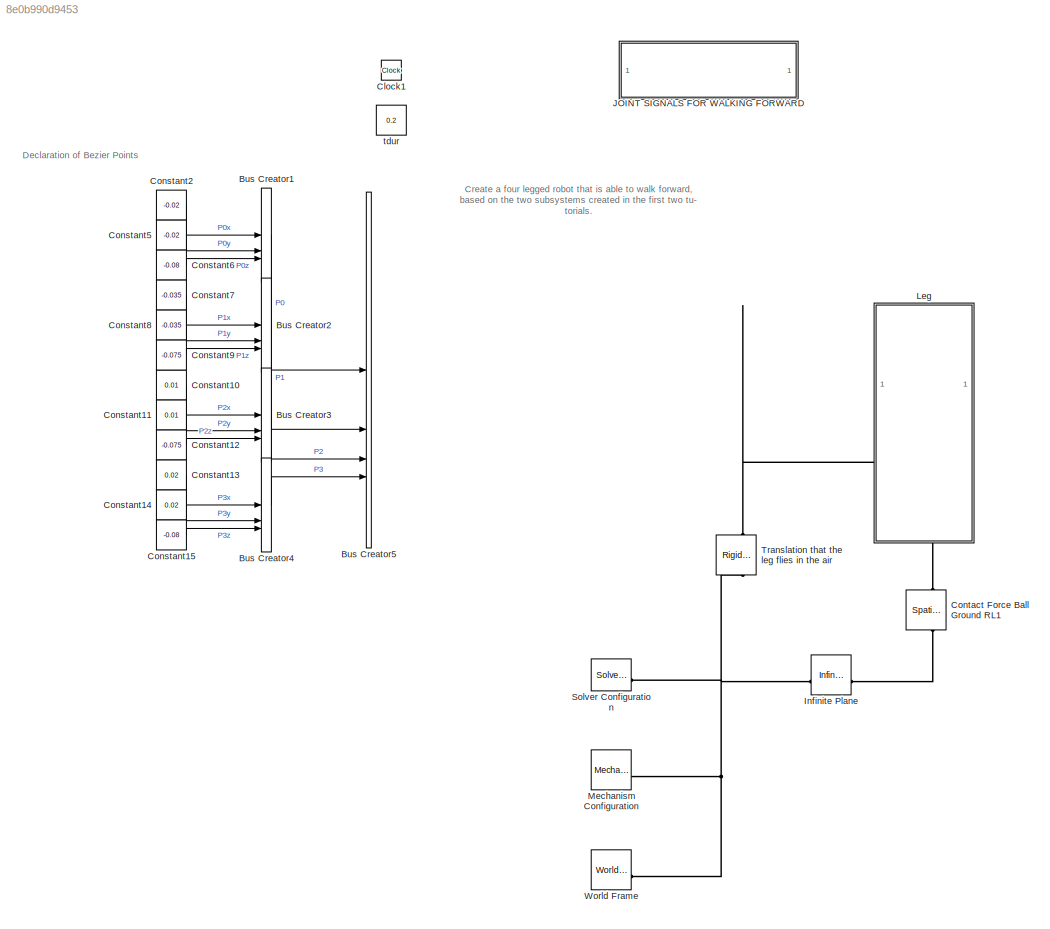
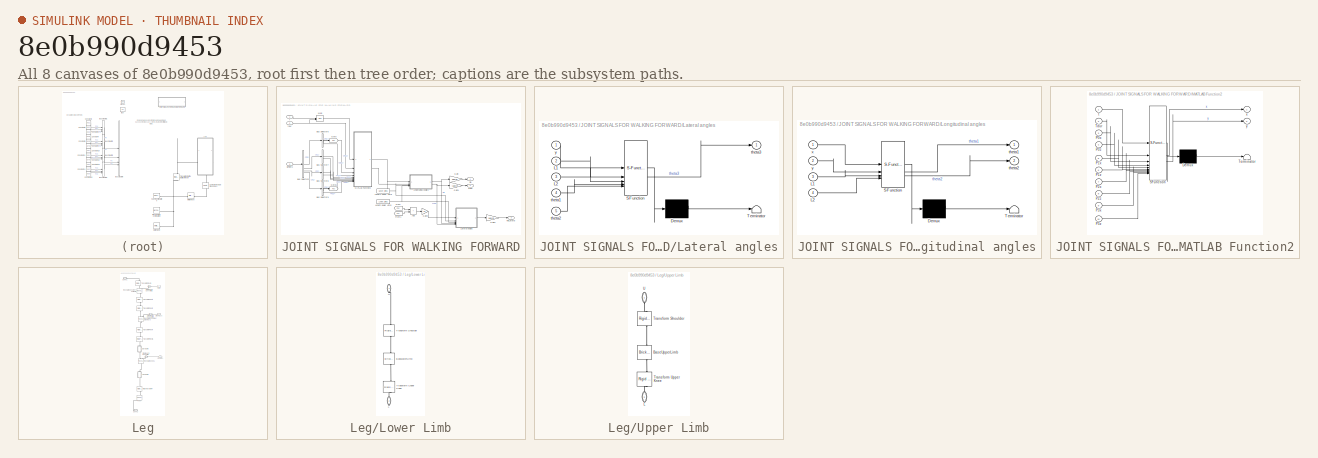
[diagram: thumbnail index - all 8 canvases of the model, root first then tree order]
MODEL slx_8e0b990d9453
KIND model
CONFIG AbsTol = 1e-3
CONFIG EnableMultiTasking = on
CONFIG FixedStep = auto
CONFIG MaxStep = auto
CONFIG MinStep = auto
CONFIG RelTol = 1e-3
CONFIG SampleTimeConstraint = Unconstrained
CONFIG SolverName = ode23t
CONFIG StartTime = 0.0
CONFIG StopTime = 5
WORKSPACE source: mxarray member
WORKSPACE A = 0.4
WORKSPACE Critical_Velocity = 0.01
WORKSPACE Damping_Factor = 1000
WORKSPACE Dynamic_Friction = 0.5
WORKSPACE Heigth_brick: Simulink.Parameter (value not decoded)
WORKSPACE Heigth_ramp: Simulink.Parameter (value not decoded)
WORKSPACE Length_brick: Simulink.Parameter (value not decoded)
WORKSPACE Length_ramp: Simulink.Parameter (value not decoded)
WORKSPACE Length_torso: Simulink.Parameter (value not decoded)
WORKSPACE Lower_limbs: Simulink.Parameter (value not decoded)
WORKSPACE Static_Friction = 0.7
WORKSPACE Stiffnesscoefficient = 10000
WORKSPACE Transition_Region_Width = 0.02
WORKSPACE Upper_limbs: Simulink.Parameter (value not decoded)
WORKSPACE Width_brick: Simulink.Parameter (value not decoded)
WORKSPACE Width_ramp: Simulink.Parameter (value not decoded)
WORKSPACE Width_torso: Simulink.Parameter (value not decoded)
WORKSPACE f = 1.5
WORKSPACE max_Joint_change = 100
WORKSPACE r_foot: Simulink.Parameter (value not decoded)
WORKSPACE sampleTime: Simulink.Parameter (value not decoded)
WORKSPACE t_leg: Simulink.Parameter (value not decoded)
WORKSPACE theta: Simulink.Parameter (value not decoded)
WORKSPACE transferFunVal: Simulink.Parameter (value not decoded)
BLOCK [BusCreator] Bus Creator1
  DisplayOption = bar
  InheritFromInputs = on
  Inputs = 3
BLOCK [BusCreator] Bus Creator2
  DisplayOption = bar
  InheritFromInputs = on
  Inputs = 3
BLOCK [BusCreator] Bus Creator3
  DisplayOption = bar
  InheritFromInputs = on
  Inputs = 3
BLOCK [BusCreator] Bus Creator4
  DisplayOption = bar
  InheritFromInputs = on
  Inputs = 3
BLOCK [BusCreator] Bus Creator5
  DisplayOption = bar
  InheritFromInputs = on
  Inputs = 4
BLOCK [Clock] Clock1
BLOCK [Constant] Constant10
  Value = 0.01
BLOCK [Constant] Constant11
  Value = 0.01
BLOCK [Constant] Constant12
  Value = -0.075
BLOCK [Constant] Constant13
  Value = 0.02
BLOCK [Constant] Constant14
  Value = 0.02
BLOCK [Constant] Constant15
  Value = -0.08
BLOCK [Constant] Constant2
  Value = -0.02
BLOCK [Constant] Constant5
  Value = -0.02
BLOCK [Constant] Constant6
  Value = -0.08
BLOCK [Constant] Constant7
  Value = -0.035
BLOCK [Constant] Constant8
  Value = -0.035
BLOCK [Constant] Constant9
  Value = -0.075
BLOCK [Reference] Contact Force Ball Ground RL1  REF=sm_lib/Forces and
Torques/Spatial
Contact Force
  NameLocation = left
  SourceBlock = sm_lib/Forces and\nTorques/Spatial\nContact Force
  SourceType = Spatial\nContact Force
BLOCK [Reference] Infinite Plane  REF=sm_lib/Curves and Surfaces/Infinite Plane
  SourceBlock = sm_lib/Curves and Surfaces/Infinite Plane
  SourceType = Infinite Plane
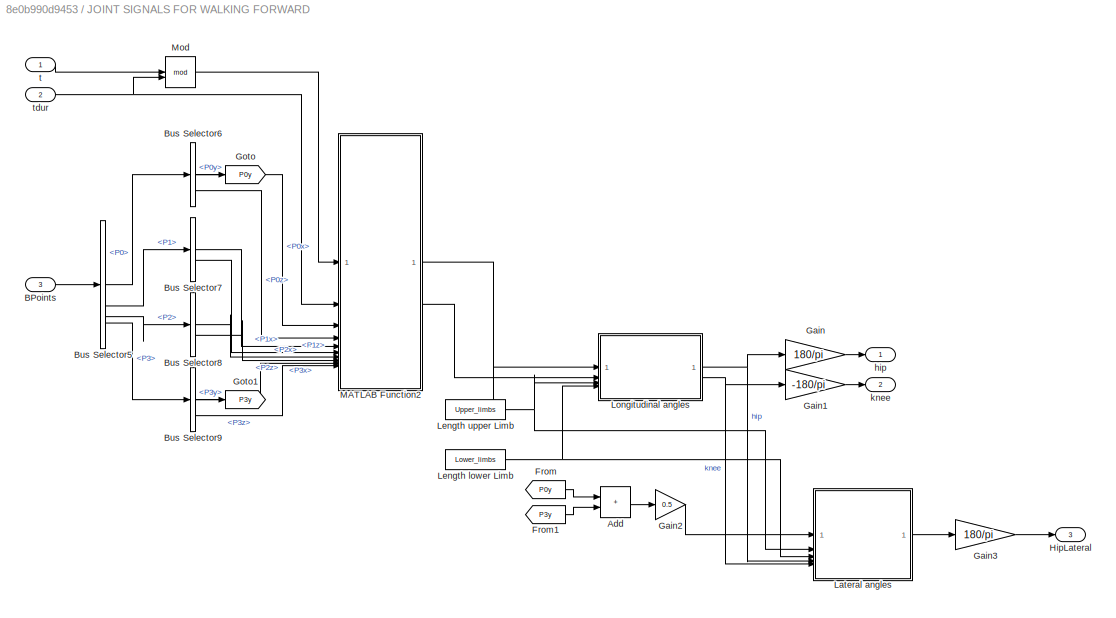
BLOCK [SubSystem] JOINT SIGNALS FOR WALKING FORWARD
BLOCK [Sum] JOINT SIGNALS FOR WALKING FORWARD/Add
  IconShape = rectangular
BLOCK [Inport] JOINT SIGNALS FOR WALKING FORWARD/BPoints
  Port = 3
BLOCK [BusSelector] JOINT SIGNALS FOR WALKING FORWARD/Bus Selector5
  OutputSignals = P0,P1,P2,P3
BLOCK [BusSelector] JOINT SIGNALS FOR WALKING FORWARD/Bus Selector6
  OutputSignals = P0x,P0y,P0z
BLOCK [BusSelector] JOINT SIGNALS FOR WALKING FORWARD/Bus Selector7
  OutputSignals = P1x,P1z
BLOCK [BusSelector] JOINT SIGNALS FOR WALKING FORWARD/Bus Selector8
  OutputSignals = P2x,P2z
BLOCK [BusSelector] JOINT SIGNALS FOR WALKING FORWARD/Bus Selector9
  OutputSignals = P3x,P3y,P3z
BLOCK [From] JOINT SIGNALS FOR WALKING FORWARD/From
  GotoTag = P0y
BLOCK [From] JOINT SIGNALS FOR WALKING FORWARD/From1
  GotoTag = P3y
BLOCK [Gain] JOINT SIGNALS FOR WALKING FORWARD/Gain
  Gain = 180/pi
BLOCK [Gain] JOINT SIGNALS FOR WALKING FORWARD/Gain1
  Gain = -180/pi
BLOCK [Gain] JOINT SIGNALS FOR WALKING FORWARD/Gain2
  Gain = 0.5
BLOCK [Gain] JOINT SIGNALS FOR WALKING FORWARD/Gain3
  Gain = 180/pi
BLOCK [Goto] JOINT SIGNALS FOR WALKING FORWARD/Goto
  GotoTag = P0y
BLOCK [Goto] JOINT SIGNALS FOR WALKING FORWARD/Goto1
  GotoTag = P3y
BLOCK [Outport] JOINT SIGNALS FOR WALKING FORWARD/HipLateral
  Port = 3
BLOCK [SubSystem] JOINT SIGNALS FOR WALKING FORWARD/Lateral angles
  ErrorFcn = Stateflow.Translate.translate
  PermitHierarchicalResolution = ExplicitOnly
  SFBlockType = MATLAB Function
  TreatAsAtomicUnit = on
BLOCK [Demux] JOINT SIGNALS FOR WALKING FORWARD/Lateral angles/ Demux 
  Outputs = 1
BLOCK [S-Function] JOINT SIGNALS FOR WALKING FORWARD/Lateral angles/ SFunction 
  EnableBusSupport = off
  FunctionName = sf_sfun
  PortCounts = [5 2]
  SFcnIsStateOwnerBlock = off
  SFunctionDeploymentMode = off
  Tag = Stateflow S-Function 2
BLOCK [Terminator] JOINT SIGNALS FOR WALKING FORWARD/Lateral angles/ Terminator 
BLOCK [Inport] JOINT SIGNALS FOR WALKING FORWARD/Lateral angles/L1
  Port = 2
BLOCK [Inport] JOINT SIGNALS FOR WALKING FORWARD/Lateral angles/L2
  Port = 3
BLOCK [Inport] JOINT SIGNALS FOR WALKING FORWARD/Lateral angles/theta1
  Port = 4
BLOCK [Inport] JOINT SIGNALS FOR WALKING FORWARD/Lateral angles/theta2
  Port = 5
BLOCK [Outport] JOINT SIGNALS FOR WALKING FORWARD/Lateral angles/theta3
BLOCK [Inport] JOINT SIGNALS FOR WALKING FORWARD/Lateral angles/y
BLOCK [Constant] JOINT SIGNALS FOR WALKING FORWARD/Length lower Limb
  Value = Lower_limbs
BLOCK [Constant] JOINT SIGNALS FOR WALKING FORWARD/Length upper Limb
  Value = Upper_limbs
BLOCK [SubSystem] JOINT SIGNALS FOR WALKING FORWARD/Longitudinal angles
  ErrorFcn = Stateflow.Translate.translate
  PermitHierarchicalResolution = ExplicitOnly
  SFBlockType = MATLAB Function
  TreatAsAtomicUnit = on
BLOCK [Demux] JOINT SIGNALS FOR WALKING FORWARD/Longitudinal angles/ Demux 
  Outputs = 1
BLOCK [S-Function] JOINT SIGNALS FOR WALKING FORWARD/Longitudinal angles/ SFunction 
  EnableBusSupport = off
  FunctionName = sf_sfun
  PortCounts = [4 3]
  SFcnIsStateOwnerBlock = off
  SFunctionDeploymentMode = off
  Tag = Stateflow S-Function 81
BLOCK [Terminator] JOINT SIGNALS FOR WALKING FORWARD/Longitudinal angles/ Terminator 
BLOCK [Inport] JOINT SIGNALS FOR WALKING FORWARD/Longitudinal angles/L1
  Port = 3
BLOCK [Inport] JOINT SIGNALS FOR WALKING FORWARD/Longitudinal angles/L2
  Port = 4
BLOCK [Outport] JOINT SIGNALS FOR WALKING FORWARD/Longitudinal angles/theta1
BLOCK [Outport] JOINT SIGNALS FOR WALKING FORWARD/Longitudinal angles/theta2
  Port = 2
BLOCK [Inport] JOINT SIGNALS FOR WALKING FORWARD/Longitudinal angles/x
BLOCK [Inport] JOINT SIGNALS FOR WALKING FORWARD/Longitudinal angles/y
  Port = 2
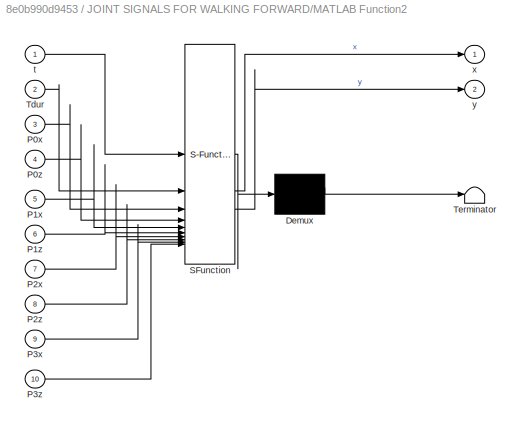
BLOCK [SubSystem] JOINT SIGNALS FOR WALKING FORWARD/MATLAB Function2
  ErrorFcn = Stateflow.Translate.translate
  PermitHierarchicalResolution = ExplicitOnly
  SFBlockType = MATLAB Function
  TreatAsAtomicUnit = on
BLOCK [Demux] JOINT SIGNALS FOR WALKING FORWARD/MATLAB Function2/ Demux 
  Outputs = 1
BLOCK [S-Function] JOINT SIGNALS FOR WALKING FORWARD/MATLAB Function2/ SFunction 
  EnableBusSupport = off
  FunctionName = sf_sfun
  PortCounts = [10 3]
  SFcnIsStateOwnerBlock = off
  SFunctionDeploymentMode = off
  Tag = Stateflow S-Function 94
BLOCK [Terminator] JOINT SIGNALS FOR WALKING FORWARD/MATLAB Function2/ Terminator 
BLOCK [Inport] JOINT SIGNALS FOR WALKING FORWARD/MATLAB Function2/P0x
  Port = 3
BLOCK [Inport] JOINT SIGNALS FOR WALKING FORWARD/MATLAB Function2/P0z
  Port = 4
BLOCK [Inport] JOINT SIGNALS FOR WALKING FORWARD/MATLAB Function2/P1x
  Port = 5
BLOCK [Inport] JOINT SIGNALS FOR WALKING FORWARD/MATLAB Function2/P1z
  Port = 6
BLOCK [Inport] JOINT SIGNALS FOR WALKING FORWARD/MATLAB Function2/P2x
  Port = 7
BLOCK [Inport] JOINT SIGNALS FOR WALKING FORWARD/MATLAB Function2/P2z
  Port = 8
BLOCK [Inport] JOINT SIGNALS FOR WALKING FORWARD/MATLAB Function2/P3x
  Port = 9
BLOCK [Inport] JOINT SIGNALS FOR WALKING FORWARD/MATLAB Function2/P3z
  Port = 10
BLOCK [Inport] JOINT SIGNALS FOR WALKING FORWARD/MATLAB Function2/Tdur
  Port = 2
BLOCK [Inport] JOINT SIGNALS FOR WALKING FORWARD/MATLAB Function2/t
BLOCK [Outport] JOINT SIGNALS FOR WALKING FORWARD/MATLAB Function2/x
BLOCK [Outport] JOINT SIGNALS FOR WALKING FORWARD/MATLAB Function2/y
  Port = 2
BLOCK [Math] JOINT SIGNALS FOR WALKING FORWARD/Mod
  Operator = mod
BLOCK [Outport] JOINT SIGNALS FOR WALKING FORWARD/hip
BLOCK [Outport] JOINT SIGNALS FOR WALKING FORWARD/knee
  Port = 2
BLOCK [Inport] JOINT SIGNALS FOR WALKING FORWARD/t
BLOCK [Inport] JOINT SIGNALS FOR WALKING FORWARD/tdur
  Port = 2
BLOCK [SubSystem] Leg
  PortSchema = {"entries":[{"content":{"sides":[{"content":{},"type":"ConnectorPlacement.EquallySpacedRectSide","uuid":"4058ee2b-9772-4aa9-ad2c-dc188ae6aecd"},{"content":{"connectorIds":["In1","In2","In3"],"side":"RIGHT"},"type":"ConnectorPlacement.EquallySpacedRectSide","uuid":"c8f5ac60-63ea-4dfe-ad35-3ef8c1bdb1d6"},{"content":{"connectorIds":["LConn1"],"side":"TOP"},"type":"ConnectorPlacement.EquallySpacedRect...<+389ch>
BLOCK [Inport] Leg/<Hip>
  NameLocation = top
BLOCK [Inport] Leg/<Knee>
  NameLocation = top
  Port = 3
BLOCK [PMIOPort] Leg/Conn1
  Side = Left
BLOCK [PMIOPort] Leg/Conn2
  Port = 2
  Side = Right
BLOCK [Reference] Leg/Foot  REF=sm_lib/Body Elements/Spherical Solid
  NameLocation = right
  SourceBlock = sm_lib/Body Elements/Spherical Solid
  SourceType = Spherical Solid
BLOCK [SubSystem] Leg/Lower Limb
  NameLocation = left
BLOCK [Reference] Leg/Lower Limb/BaseLowerLimb  REF=sm_lib/Body Elements/Brick Solid
  NameLocation = left
  SourceBlock = sm_lib/Body Elements/Brick Solid
  SourceType = Brick Solid
BLOCK [PMIOPort] Leg/Lower Limb/L
  NameLocation = left
  Port = 2
  Side = Right
BLOCK [Reference] Leg/Lower Limb/Transform Shoulder  REF=sm_lib/Frames and
Transforms/Rigid
Transform
  NameLocation = left
  SourceBlock = sm_lib/Frames and\nTransforms/Rigid\nTransform
  SourceType = Rigid\nTransform
BLOCK [Reference] Leg/Lower Limb/Transform Upper Knee  REF=sm_lib/Frames and
Transforms/Rigid
Transform
  NameLocation = left
  SourceBlock = sm_lib/Frames and\nTransforms/Rigid\nTransform
  SourceType = Rigid\nTransform
BLOCK [PMIOPort] Leg/Lower Limb/U
  NameLocation = left
  Side = Left
BLOCK [Reference] Leg/Revolute Knee1  REF=sm_lib/Joints/Revolute Joint
  NameLocation = left
  SourceBlock = sm_lib/Joints/Revolute Joint
  SourceType = Revolute Joint
BLOCK [Reference] Leg/Revolute Shoulder Forward  REF=sm_lib/Joints/Revolute Joint
  NameLocation = left
  SourceBlock = sm_lib/Joints/Revolute Joint
  SourceType = Revolute Joint
BLOCK [Reference] Leg/Revolute Shoulder Sideways  REF=sm_lib/Joints/Revolute Joint
  NameLocation = left
  SourceBlock = sm_lib/Joints/Revolute Joint
  SourceType = Revolute Joint
BLOCK [Reference] Leg/Rigid Transform4  REF=sm_lib/Frames and
Transforms/Rigid
Transform
  NameLocation = left
  SourceBlock = sm_lib/Frames and\nTransforms/Rigid\nTransform
  SourceType = Rigid\nTransform
BLOCK [Inport] Leg/Sideways
  NameLocation = top
  Port = 2
BLOCK [Reference] Leg/Simulink-PS Converter  REF=nesl_utility/Simulink-PS
Converter
  NameLocation = top
  SourceBlock = nesl_utility/Simulink-PS\nConverter
  SourceType = Simulink-PS\nConverter
BLOCK [Reference] Leg/Simulink-PS Converter1  REF=nesl_utility/Simulink-PS
Converter
  NameLocation = top
  SourceBlock = nesl_utility/Simulink-PS\nConverter
  SourceType = Simulink-PS\nConverter
BLOCK [Reference] Leg/Simulink-PS Converter2  REF=nesl_utility/Simulink-PS
Converter
  NameLocation = top
  SourceBlock = nesl_utility/Simulink-PS\nConverter
  SourceType = Simulink-PS\nConverter
BLOCK [Reference] Leg/Transform Pivot1  REF=sm_lib/Frames and
Transforms/Rigid
Transform
  NameLocation = left
  SourceBlock = sm_lib/Frames and\nTransforms/Rigid\nTransform
  SourceType = Rigid\nTransform
BLOCK [Reference] Leg/Transform Pivot2  REF=sm_lib/Frames and
Transforms/Rigid
Transform
  NameLocation = left
  SourceBlock = sm_lib/Frames and\nTransforms/Rigid\nTransform
  SourceType = Rigid\nTransform
BLOCK [Reference] Leg/Transform Pivot3  REF=sm_lib/Frames and
Transforms/Rigid
Transform
  NameLocation = left
  SourceBlock = sm_lib/Frames and\nTransforms/Rigid\nTransform
  SourceType = Rigid\nTransform
BLOCK [Reference] Leg/Transform Pivot4  REF=sm_lib/Frames and
Transforms/Rigid
Transform
  NameLocation = left
  SourceBlock = sm_lib/Frames and\nTransforms/Rigid\nTransform
  SourceType = Rigid\nTransform
BLOCK [Reference] Leg/Transform Pivot5  REF=sm_lib/Frames and
Transforms/Rigid
Transform
  NameLocation = left
  SourceBlock = sm_lib/Frames and\nTransforms/Rigid\nTransform
  SourceType = Rigid\nTransform
BLOCK [SubSystem] Leg/Upper Limb
  NameLocation = left
BLOCK [Reference] Leg/Upper Limb/BaseUpperLimb  REF=sm_lib/Body Elements/Brick Solid
  NameLocation = left
  SourceBlock = sm_lib/Body Elements/Brick Solid
  SourceType = Brick Solid
BLOCK [PMIOPort] Leg/Upper Limb/L
  NameLocation = left
  Port = 2
  Side = Right
BLOCK [Reference] Leg/Upper Limb/Transform Shoulder  REF=sm_lib/Frames and
Transforms/Rigid
Transform
  NameLocation = left
  SourceBlock = sm_lib/Frames and\nTransforms/Rigid\nTransform
  SourceType = Rigid\nTransform
BLOCK [Reference] Leg/Upper Limb/Transform Upper Knee  REF=sm_lib/Frames and
Transforms/Rigid
Transform
  NameLocation = left
  SourceBlock = sm_lib/Frames and\nTransforms/Rigid\nTransform
  SourceType = Rigid\nTransform
BLOCK [PMIOPort] Leg/Upper Limb/U
  NameLocation = left
  Side = Left
BLOCK [Reference] Mechanism Configuration  REF=sm_lib/Utilities/Mechanism
Configuration
  SourceBlock = sm_lib/Utilities/Mechanism\nConfiguration
  SourceType = Mechanism\nConfiguration
BLOCK [Reference] Solver Configuration  REF=nesl_utility/Solver
Configuration
  SourceBlock = nesl_utility/Solver\nConfiguration
  SourceType = Solver\nConfiguration
BLOCK [Reference] Translation that the leg flies in the air  REF=sm_lib/Frames and
Transforms/Rigid
Transform
  SourceBlock = sm_lib/Frames and\nTransforms/Rigid\nTransform
  SourceType = Rigid\nTransform
BLOCK [Reference] World Frame  REF=sm_lib/Frames and
Transforms/World Frame
  SourceBlock = sm_lib/Frames and\nTransforms/World Frame
  SourceType = World Frame
BLOCK [Constant] tdur
  Value = 0.2
ANNOTATION (root): Create a four legged robot that is able to walk forward, based on the two subsystems created in the first two tu- torials.
ANNOTATION (root): Declaration of Bezier Points
LINE Bus Creator1:1 -> Bus Creator5:1
LINE Bus Creator2:1 -> Bus Creator5:2
LINE Bus Creator3:1 -> Bus Creator5:3
LINE Bus Creator4:1 -> Bus Creator5:4
LINE Constant10:1 -> Bus Creator3:1
LINE Constant11:1 -> Bus Creator3:2
LINE Constant12:1 -> Bus Creator3:3
LINE Constant13:1 -> Bus Creator4:1
LINE Constant14:1 -> Bus Creator4:2
LINE Constant15:1 -> Bus Creator4:3
LINE Constant2:1 -> Bus Creator1:1
LINE Constant5:1 -> Bus Creator1:2
LINE Constant6:1 -> Bus Creator1:3
LINE Constant7:1 -> Bus Creator2:1
LINE Constant8:1 -> Bus Creator2:2
LINE Constant9:1 -> Bus Creator2:3
LINE JOINT SIGNALS FOR WALKING FORWARD/Add:1 -> JOINT SIGNALS FOR WALKING FORWARD/Gain2:1
LINE JOINT SIGNALS FOR WALKING FORWARD/BPoints:1 -> JOINT SIGNALS FOR WALKING FORWARD/Bus Selector5:1
LINE JOINT SIGNALS FOR WALKING FORWARD/Bus Selector5:1 -> JOINT SIGNALS FOR WALKING FORWARD/Bus Selector6:1
LINE JOINT SIGNALS FOR WALKING FORWARD/Bus Selector5:2 -> JOINT SIGNALS FOR WALKING FORWARD/Bus Selector7:1
LINE JOINT SIGNALS FOR WALKING FORWARD/Bus Selector5:3 -> JOINT SIGNALS FOR WALKING FORWARD/Bus Selector8:1
LINE JOINT SIGNALS FOR WALKING FORWARD/Bus Selector5:4 -> JOINT SIGNALS FOR WALKING FORWARD/Bus Selector9:1
LINE JOINT SIGNALS FOR WALKING FORWARD/Bus Selector6:1 -> JOINT SIGNALS FOR WALKING FORWARD/MATLAB Function2:3
LINE JOINT SIGNALS FOR WALKING FORWARD/Bus Selector6:2 -> JOINT SIGNALS FOR WALKING FORWARD/Goto:1
LINE JOINT SIGNALS FOR WALKING FORWARD/Bus Selector6:3 -> JOINT SIGNALS FOR WALKING FORWARD/MATLAB Function2:4
LINE JOINT SIGNALS FOR WALKING FORWARD/Bus Selector7:1 -> JOINT SIGNALS FOR WALKING FORWARD/MATLAB Function2:5
LINE JOINT SIGNALS FOR WALKING FORWARD/Bus Selector7:2 -> JOINT SIGNALS FOR WALKING FORWARD/MATLAB Function2:6
LINE JOINT SIGNALS FOR WALKING FORWARD/Bus Selector8:1 -> JOINT SIGNALS FOR WALKING FORWARD/MATLAB Function2:7
LINE JOINT SIGNALS FOR WALKING FORWARD/Bus Selector8:2 -> JOINT SIGNALS FOR WALKING FORWARD/MATLAB Function2:8
LINE JOINT SIGNALS FOR WALKING FORWARD/Bus Selector9:1 -> JOINT SIGNALS FOR WALKING FORWARD/MATLAB Function2:9
LINE JOINT SIGNALS FOR WALKING FORWARD/Bus Selector9:2 -> JOINT SIGNALS FOR WALKING FORWARD/Goto1:1
LINE JOINT SIGNALS FOR WALKING FORWARD/Bus Selector9:3 -> JOINT SIGNALS FOR WALKING FORWARD/MATLAB Function2:10
LINE JOINT SIGNALS FOR WALKING FORWARD/From1:1 -> JOINT SIGNALS FOR WALKING FORWARD/Add:2
LINE JOINT SIGNALS FOR WALKING FORWARD/From:1 -> JOINT SIGNALS FOR WALKING FORWARD/Add:1
LINE JOINT SIGNALS FOR WALKING FORWARD/Gain1:1 -> JOINT SIGNALS FOR WALKING FORWARD/knee:1
LINE JOINT SIGNALS FOR WALKING FORWARD/Gain2:1 -> JOINT SIGNALS FOR WALKING FORWARD/Lateral angles:1
LINE JOINT SIGNALS FOR WALKING FORWARD/Gain3:1 -> JOINT SIGNALS FOR WALKING FORWARD/HipLateral:1
LINE JOINT SIGNALS FOR WALKING FORWARD/Gain:1 -> JOINT SIGNALS FOR WALKING FORWARD/hip:1
LINE JOINT SIGNALS FOR WALKING FORWARD/Lateral angles:1 -> JOINT SIGNALS FOR WALKING FORWARD/Gain3:1
NET JOINT SIGNALS FOR WALKING FORWARD/Length lower Limb:1 -> JOINT SIGNALS FOR WALKING FORWARD/Lateral angles:3, JOINT SIGNALS FOR WALKING FORWARD/Longitudinal angles:4
NET JOINT SIGNALS FOR WALKING FORWARD/Length upper Limb:1 -> JOINT SIGNALS FOR WALKING FORWARD/Lateral angles:2, JOINT SIGNALS FOR WALKING FORWARD/Longitudinal angles:3
NET JOINT SIGNALS FOR WALKING FORWARD/Longitudinal angles:1 -> JOINT SIGNALS FOR WALKING FORWARD/Gain:1, JOINT SIGNALS FOR WALKING FORWARD/Lateral angles:4
NET JOINT SIGNALS FOR WALKING FORWARD/Longitudinal angles:2 -> JOINT SIGNALS FOR WALKING FORWARD/Gain1:1, JOINT SIGNALS FOR WALKING FORWARD/Lateral angles:5
LINE JOINT SIGNALS FOR WALKING FORWARD/MATLAB Function2:1 -> JOINT SIGNALS FOR WALKING FORWARD/Longitudinal angles:1
LINE JOINT SIGNALS FOR WALKING FORWARD/MATLAB Function2:2 -> JOINT SIGNALS FOR WALKING FORWARD/Longitudinal angles:2
LINE JOINT SIGNALS FOR WALKING FORWARD/Mod:1 -> JOINT SIGNALS FOR WALKING FORWARD/MATLAB Function2:1
LINE JOINT SIGNALS FOR WALKING FORWARD/t:1 -> JOINT SIGNALS FOR WALKING FORWARD/Mod:1
NET JOINT SIGNALS FOR WALKING FORWARD/tdur:1 -> JOINT SIGNALS FOR WALKING FORWARD/MATLAB Function2:2, JOINT SIGNALS FOR WALKING FORWARD/Mod:2
LINE Leg/<Hip>:1 -> Leg/Simulink-PS Converter2:1
LINE Leg/<Knee>:1 -> Leg/Simulink-PS Converter:1
LINE Leg/Sideways:1 -> Leg/Simulink-PS Converter1:1
PLINE Contact Force Ball Ground RL1:LConn1 -- Leg:RConn1
PLINE Contact Force Ball Ground RL1:RConn1 -- Infinite Plane:RConn1
PNET net1: Infinite Plane:LConn1 -- Mechanism Configuration:RConn1 -- Solver Configuration:RConn1 -- Translation that the leg flies in the air:LConn1 -- World Frame:RConn1
PLINE Leg/Conn1:RConn1 -- Leg/Transform Pivot1:LConn1
PLINE Leg/Conn2:RConn1 -- Leg/Foot:LConn1
PLINE Leg/Foot:RConn1 -- Leg/Rigid Transform4:RConn1
PLINE Leg/Lower Limb/BaseLowerLimb:LConn1 -- Leg/Lower Limb/Transform Shoulder:LConn1
PLINE Leg/Lower Limb/BaseLowerLimb:RConn1 -- Leg/Lower Limb/Transform Upper Knee:LConn1
PLINE Leg/Lower Limb/L:RConn1 -- Leg/Lower Limb/Transform Upper Knee:RConn1
PLINE Leg/Lower Limb/Transform Shoulder:RConn1 -- Leg/Lower Limb/U:RConn1
PLINE Leg/Lower Limb:LConn1 -- Leg/Revolute Knee1:RConn1
PLINE Leg/Lower Limb:RConn1 -- Leg/Rigid Transform4:LConn1
PLINE Leg/Revolute Knee1:LConn1 -- Leg/Upper Limb:RConn1
PLINE Leg/Revolute Knee1:LConn2 -- Leg/Simulink-PS Converter:RConn1
PLINE Leg/Revolute Shoulder Forward:LConn1 -- Leg/Transform Pivot1:RConn1
PLINE Leg/Revolute Shoulder Forward:LConn2 -- Leg/Simulink-PS Converter2:RConn1
PLINE Leg/Revolute Shoulder Forward:RConn1 -- Leg/Transform Pivot2:LConn1
PLINE Leg/Revolute Shoulder Sideways:LConn1 -- Leg/Transform Pivot3:RConn1
PLINE Leg/Revolute Shoulder Sideways:LConn2 -- Leg/Simulink-PS Converter1:RConn1
PLINE Leg/Revolute Shoulder Sideways:RConn1 -- Leg/Transform Pivot4:LConn1
PLINE Leg/Transform Pivot2:RConn1 -- Leg/Transform Pivot3:LConn1
PLINE Leg/Transform Pivot4:RConn1 -- Leg/Transform Pivot5:LConn1
PLINE Leg/Transform Pivot5:RConn1 -- Leg/Upper Limb:LConn1
PLINE Leg/Upper Limb/BaseUpperLimb:LConn1 -- Leg/Upper Limb/Transform Shoulder:LConn1
PLINE Leg/Upper Limb/BaseUpperLimb:RConn1 -- Leg/Upper Limb/Transform Upper Knee:LConn1
PLINE Leg/Upper Limb/L:RConn1 -- Leg/Upper Limb/Transform Upper Knee:RConn1
PLINE Leg/Upper Limb/Transform Shoulder:RConn1 -- Leg/Upper Limb/U:RConn1
PLINE Leg:LConn1 -- Translation that the leg flies in the air:RConn1
note: NET lines group one-source signal fan-out (src -> all destinations, sorted); 1:1 wires keep LINE; PNET lines group multi-terminal physical nets as a canonical sorted terminal list (undirected conserving connections); 2-terminal nets keep the pairwise PLINE form
CHART JOINT SIGNALS FOR WALKING FORWARD/Lateral angles states=1 transitions=1
  STATE_LABEL 'eML_blk_kernel()'
  STATE_LABEL 'SCRIPT:\nfunction theta3 = latAng(y, L1, L2, theta1, theta2)\n\nl = cos(theta1)*(L1 + L2*cos(theta2));\n\ntheta3 = asin(y/l);\n'
CHART JOINT SIGNALS FOR WALKING FORWARD/Longitudinal angles states=1 transitions=1
  STATE_LABEL 'eML_blk_kernel()'
  STATE_LABEL 'SCRIPT:\nfunction [theta1, theta2] = ang(x,y,L1,L2)\nx;\ny;\n(x.^2+y.^2-L1.^2-L2.^2) / (2*L1*L2);\ntheta2 = acos((x.^2+y.^2-L1.^2-L2.^2) / (2*L1*L2));\nbeta = asin((L2*sin(theta2))./((x.^2+y.^2).^0.5));\ntheta1 = asin(x./((x.^2+y.^2).^0.5)) + beta;\nend'
CHART JOINT SIGNALS FOR WALKING FORWARD/MATLAB Function2 states=1 transitions=1
  STATE_LABEL 'eML_blk_kernel()'
  STATE_LABEL 'SCRIPT:\nfunction [x, y] = bez_plane_TrajV2(t,Tdur,P0x,P0z,P1x,P1z,P2x,P2z,P3x,P3z)\nt_swing = Tdur/4;\nt_support = Tdur*3/4;\n\nP0 = [P0x, P0z];\nP1 = [P1x, P1z];\nP2 = [P2x, P2z];\nP3 = [P3x, P3z];\nP_ini = (P0 + P3)/2;\n\nif Tdur == 0\n    x = -P_ini(1);\n    y = P_ini(2);\n\nelseif t<=t_support/2\n    x = -1*(P_ini(1)+(P0(1)-P3(1))/t_support*(t));\n    y = P_ini(2);\n\nelseif t<=t_support/2+t_swing\n    t_ef = (t...<+328ch>'
CHART  states=0 transitions=0
CHART  states=0 transitions=0
CHART  states=0 transitions=0
